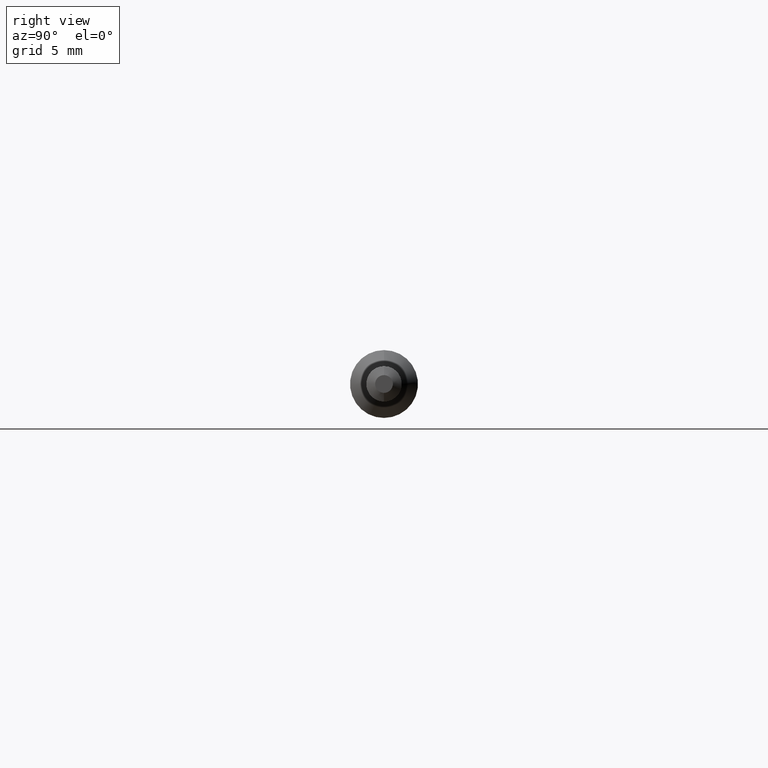
[diagram: clean part render]
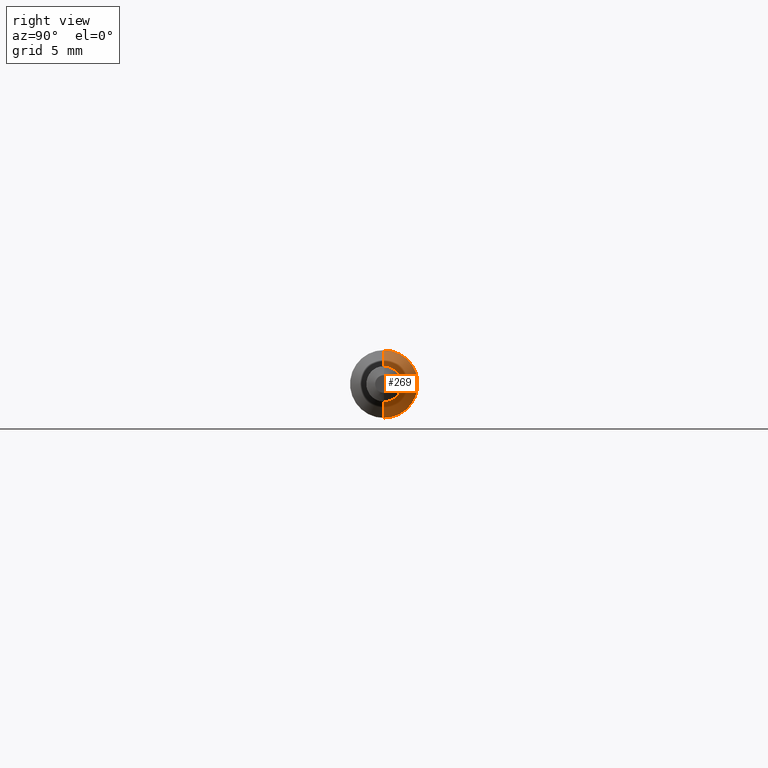
[diagram: same view with one face highlighted and labeled with its STEP entity id]
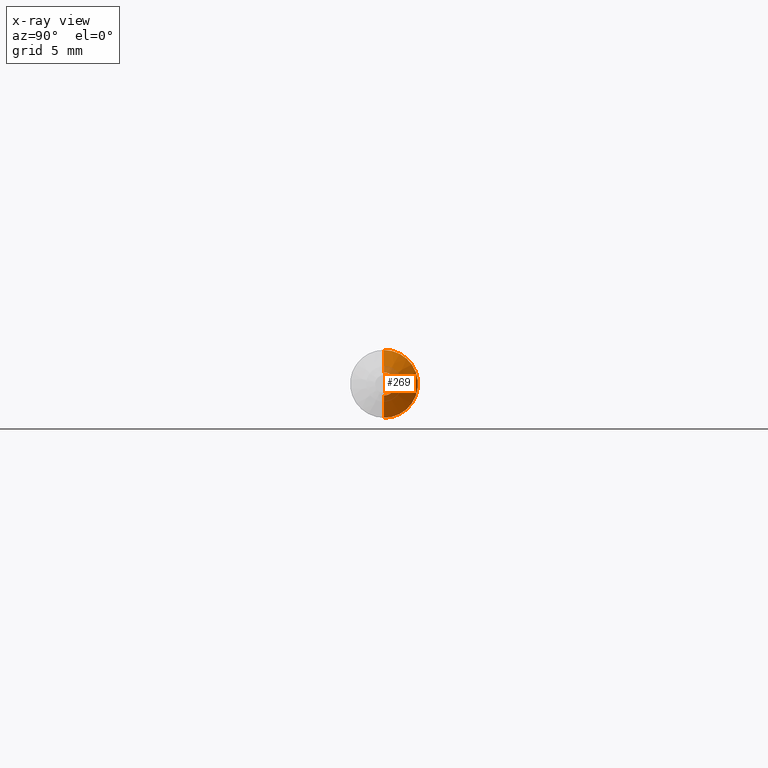
[diagram: x-ray of the same camera — body ghosted, the highlighted face saturated]
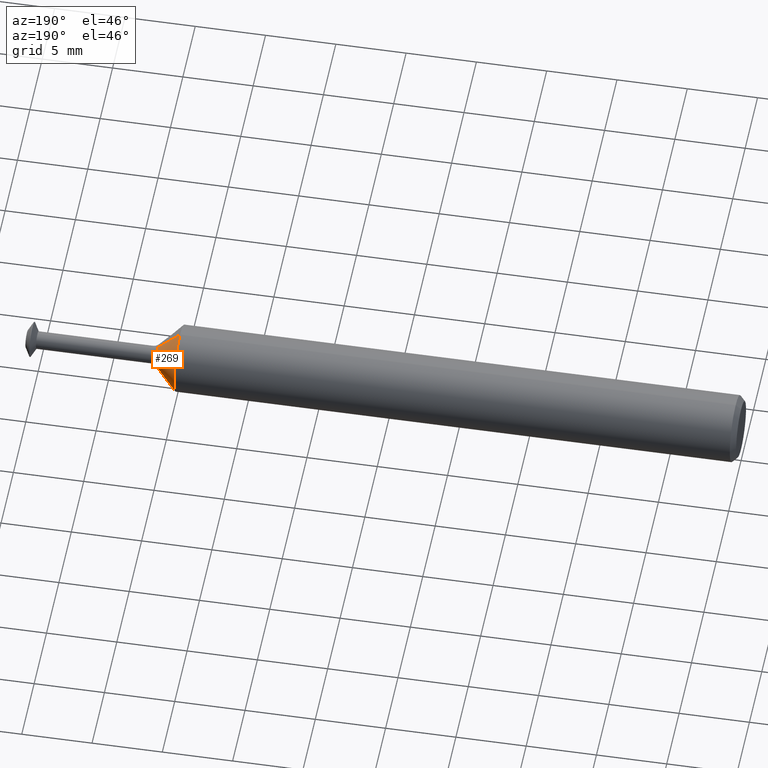
[diagram: same view with one face highlighted and labeled with its STEP entity id]
A machine part, right view. The second image highlights one B-rep face of the part: STEP entity #269.
The next image is the same camera in x-ray: the body ghosted, the highlighted face saturated — about 18% of this face is hidden behind the body in this view.
A second angle (auxiliary view) of the same face is appended — the face is thin or edge-on in the first view.
In plain terms, the highlighted conical surface has half-angle 45 deg.
Its self-contained STEP definition (entity closure, byte-faithful):
#34 = AXIS2_PLACEMENT_3D ( 'NONE', #457, #395, #64 ) ;
#46 = CONICAL_SURFACE ( 'NONE', #34, 0.03182233047033589113, 0.7853981633974520538 ) ;
#64 = DIRECTION ( 'NONE',  ( 0.0000000000000000000, 0.0000000000000000000, 1.000000000000000000 ) ) ;
#65 = EDGE_CURVE ( 'NONE', #80, #338, #220, .T. ) ;
#72 = EDGE_CURVE ( 'NONE', #343, #80, #369, .T. ) ;
#80 = VERTEX_POINT ( 'NONE', #124 ) ;
#81 = VECTOR ( 'NONE', #282, 39.37007874015748143 ) ;
#82 = AXIS2_PLACEMENT_3D ( 'NONE', #475, #359, #356 ) ;
#90 = DIRECTION ( 'NONE',  ( -0.7071067811865449082, 8.659560562354964906E-17, -0.7071067811865501263 ) ) ;
#124 = CARTESIAN_POINT ( 'NONE',  ( 1.632867980192602264, 3.897111515190616455E-18, -0.03182233047033591194 ) ) ;
#160 = EDGE_CURVE ( 'NONE', #343, #227, #273, .T. ) ;
#162 = CARTESIAN_POINT ( 'NONE',  ( 1.632867980192602264, 0.0000000000000000000, 0.0000000000000000000 ) ) ;
#192 = VECTOR ( 'NONE', #90, 39.37007874015748143 ) ;
#215 = ORIENTED_EDGE ( 'NONE', *, *, #160, .F. ) ;
#220 = LINE ( 'NONE', #488, #192 ) ;
#227 = VERTEX_POINT ( 'NONE', #311 ) ;
#269 = ADVANCED_FACE ( 'NONE', ( #411 ), #46, .T. ) ;
#273 = LINE ( 'NONE', #406, #81 ) ;
#282 = DIRECTION ( 'NONE',  ( -0.7071067811865449082, 0.0000000000000000000, 0.7071067811865501263 ) ) ;
#311 = CARTESIAN_POINT ( 'NONE',  ( 1.571090310662938583, 0.0000000000000000000, 0.09360000000000003040 ) ) ;
#338 = VERTEX_POINT ( 'NONE', #454 ) ;
#343 = VERTEX_POINT ( 'NONE', #490 ) ;
#352 = DIRECTION ( 'NONE',  ( 0.0000000000000000000, 0.0000000000000000000, 1.000000000000000000 ) ) ;
#355 = EDGE_CURVE ( 'NONE', #227, #338, #374, .T. ) ;
#356 = DIRECTION ( 'NONE',  ( 0.0000000000000000000, 0.0000000000000000000, 1.000000000000000000 ) ) ;
#359 = DIRECTION ( 'NONE',  ( -1.000000000000000000, -0.0000000000000000000, -0.0000000000000000000 ) ) ;
#367 = ORIENTED_EDGE ( 'NONE', *, *, #355, .F. ) ;
#369 = CIRCLE ( 'NONE', #465, 0.03182233047033589113 ) ;
#374 = CIRCLE ( 'NONE', #82, 0.09360000000000001652 ) ;
#383 = ORIENTED_EDGE ( 'NONE', *, *, #65, .T. ) ;
#385 = ORIENTED_EDGE ( 'NONE', *, *, #72, .T. ) ;
#395 = DIRECTION ( 'NONE',  ( -1.000000000000000000, -0.0000000000000000000, -0.0000000000000000000 ) ) ;
#406 = CARTESIAN_POINT ( 'NONE',  ( 1.632867980192602264, 0.0000000000000000000, 0.03182233047033589113 ) ) ;
#411 = FACE_OUTER_BOUND ( 'NONE', #460, .T. ) ;
#434 = DIRECTION ( 'NONE',  ( -1.000000000000000000, -0.0000000000000000000, -0.0000000000000000000 ) ) ;
#454 = CARTESIAN_POINT ( 'NONE',  ( 1.571090310662938583, 1.146269404001922930E-17, -0.09360000000000003040 ) ) ;
#457 = CARTESIAN_POINT ( 'NONE',  ( 1.632867980192602264, 0.0000000000000000000, 0.0000000000000000000 ) ) ;
#460 = EDGE_LOOP ( 'NONE', ( #385, #383, #367, #215 ) ) ;
#465 = AXIS2_PLACEMENT_3D ( 'NONE', #162, #434, #352 ) ;
#475 = CARTESIAN_POINT ( 'NONE',  ( 1.571090310662938583, 0.0000000000000000000, 0.0000000000000000000 ) ) ;
#488 = CARTESIAN_POINT ( 'NONE',  ( 1.632867980192602264, 3.897111515190613373E-18, -0.03182233047033589113 ) ) ;
#490 = CARTESIAN_POINT ( 'NONE',  ( 1.632867980192602264, 0.0000000000000000000, 0.03182233047033591194 ) ) ;